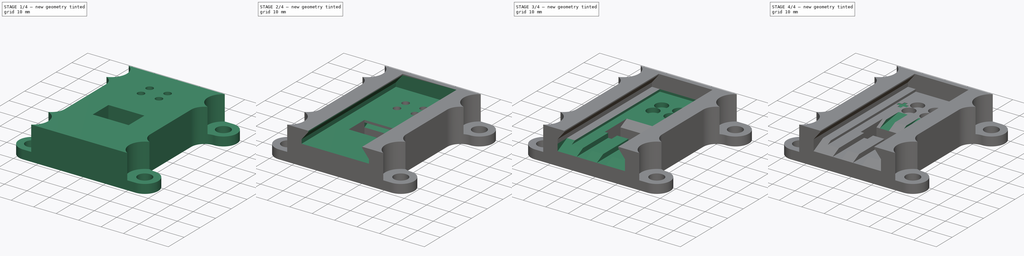
[diagram: build sequence overview — one tinted view per stage of 4, left to right]
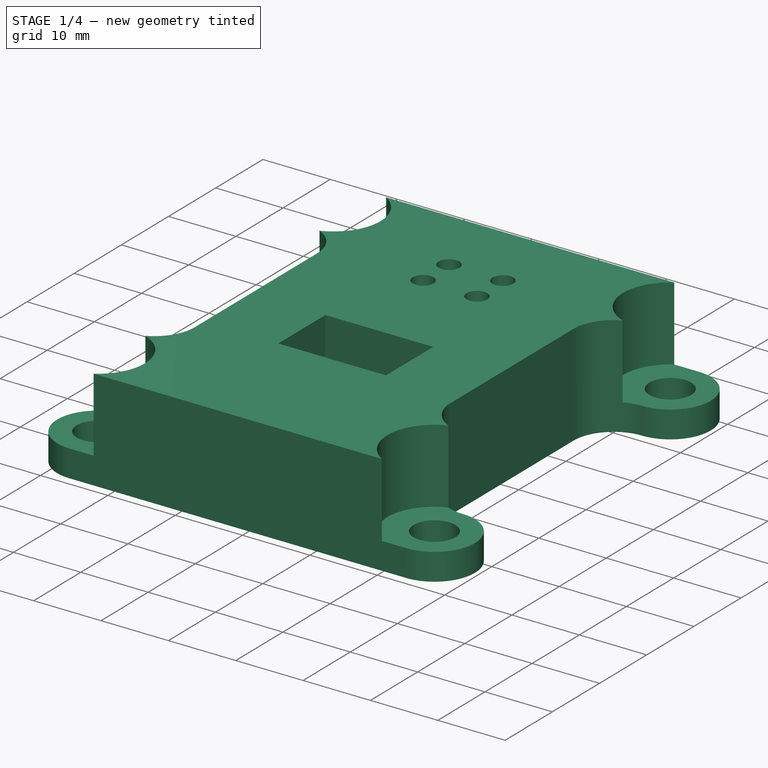
[diagram: stage 1 of 4 — iso view after this stage's code; geometry added in this stage tinted green]
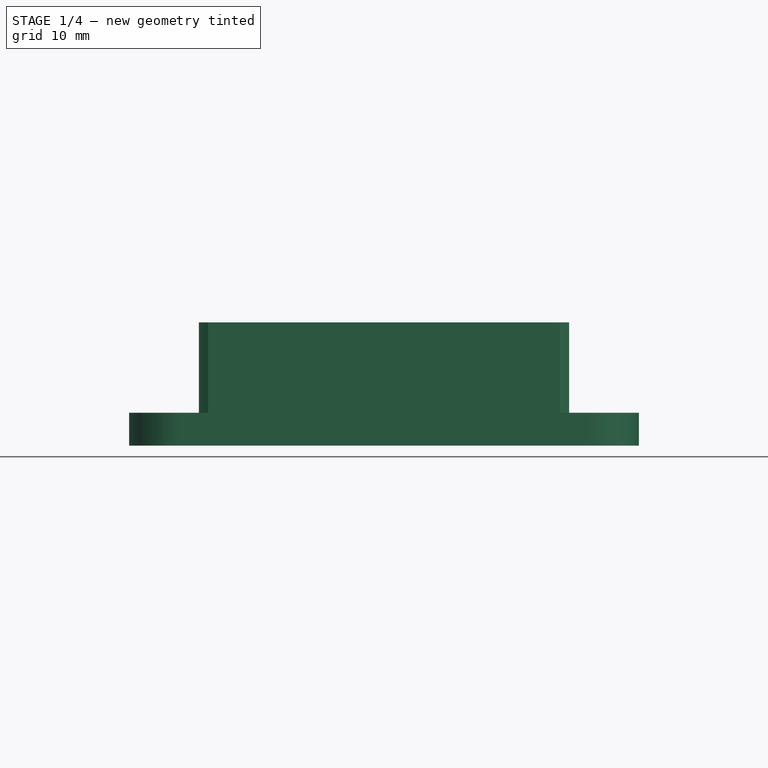
[diagram: stage 1 of 4 — front view after this stage's code; geometry added in this stage tinted green]
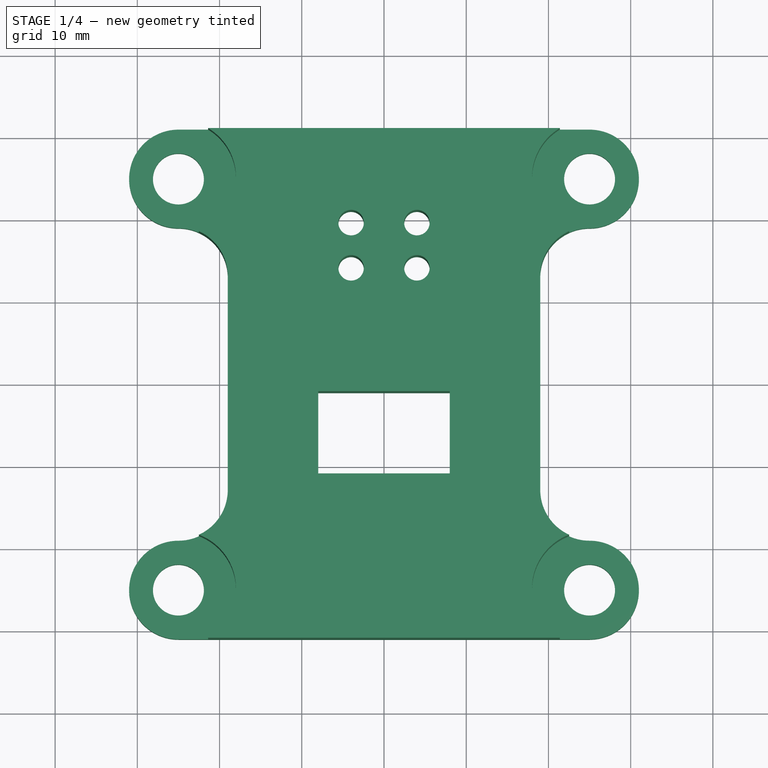
[diagram: stage 1 of 4 — top view after this stage's code; geometry added in this stage tinted green]
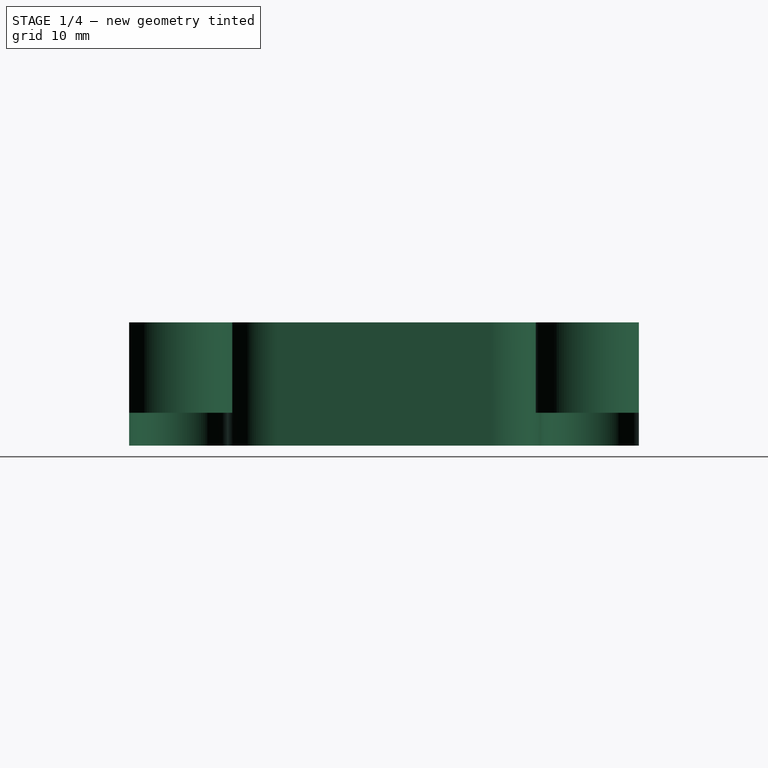
[diagram: stage 1 of 4 — right view after this stage's code; geometry added in this stage tinted green]
FCSTD DOCUMENT  (FreeCAD 0.20R)
Label: mandeye_holder
License: All rights reserved
LicenseURL: http://en.wikipedia.org/wiki/All_rights_reserved
objects: Sketcher::SketchObject×12, PartDesign::Pocket×11, PartDesign::Pad×1, Part::Feature×1, PartDesign::Body×1
note: 38 computed .brp shape members not serialized (recipe doc carries the construction recipe); baked Part::Feature solids carry a one-line shape summary decoded from their .brp

FEATURE [Sketcher::SketchObject] Sketch
  FullyConstrained = true
  MapMode = 5
  Support = -> [XY_Plane]
  sketch-geometry (12):
    g0: ArcOfCircle CenterX=-25 CenterY=25 CenterZ=0 NormalX=0 NormalY=0 NormalZ=1 AngleXU=0 Radius=6 StartAngle=1.5708 EndAngle=4.71239
    g1: ArcOfCircle CenterX=-25 CenterY=-25 CenterZ=0 NormalX=0 NormalY=0 NormalZ=1 AngleXU=0 Radius=6 StartAngle=1.5708 EndAngle=4.71239
    g2: ArcOfCircle CenterX=25 CenterY=-25 CenterZ=0 NormalX=0 NormalY=0 NormalZ=1 AngleXU=0 Radius=6 StartAngle=4.71239 EndAngle=7.85398
    g3: ArcOfCircle CenterX=25 CenterY=25 CenterZ=0 NormalX=0 NormalY=0 NormalZ=1 AngleXU=0 Radius=6 StartAngle=4.71239 EndAngle=7.85398
    g4: ArcOfCircle CenterX=-25 CenterY=13 CenterZ=0 NormalX=0 NormalY=0 NormalZ=1 AngleXU=0 Radius=6 StartAngle=1e-16 EndAngle=1.5708
    g5: ArcOfCircle CenterX=-25 CenterY=-13 CenterZ=0 NormalX=0 NormalY=0 NormalZ=1 AngleXU=0 Radius=6 StartAngle=4.71239 EndAngle=6.28319
    g6: ArcOfCircle CenterX=25 CenterY=-13 CenterZ=0 NormalX=0 NormalY=0 NormalZ=1 AngleXU=0 Radius=6 StartAngle=3.14159 EndAngle=4.71239
    g7: ArcOfCircle CenterX=25 CenterY=13 CenterZ=0 NormalX=0 NormalY=0 NormalZ=1 AngleXU=0 Radius=6 StartAngle=1.57079 EndAngle=3.14159
    g8: LineSegment StartX=-25 StartY=31 StartZ=0 EndX=25 EndY=31 EndZ=0
    g9: LineSegment StartX=-25 StartY=-31 StartZ=0 EndX=25 EndY=-31 EndZ=0
    g10: LineSegment StartX=-19 StartY=-13 StartZ=0 EndX=-19 EndY=13 EndZ=0
    g11: LineSegment StartX=19 StartY=-13 StartZ=0 EndX=19 EndY=13 EndZ=0
  constraints (29):
    c: Coincident(g6,g2)
    c: Coincident(g7,g3)
    c: Coincident(g11,g6)
    c: Vertical(g11)
    c: Symmetric(g2,g1,g-2)
    c: Symmetric(g0,g3,g-2)
    c: Symmetric(g0,g1,g-1)
    c: Equal(g0,g3)
    c: Equal(g3,g7)
    c: Equal(g7,g6)
    c: Equal(g6,g2)
    c: Equal(g0,g4)
    c: Equal(g4,g5)
    c: Tangent(g8,g0) = 1.5708
    c: Tangent(g4,g0) = 1.5708
    c: Tangent(g10,g4) = -1.5708
    c: Tangent(g10,g5) = -1.5708
    c: Tangent(g5,g1) = 1.5708
    c: Tangent(g9,g1) = -1.5708
    c: Symmetric(g5,g4,g-1)
    c: Symmetric(g6,g7,g-1)
    c: Symmetric(g4,g7,g-2)
    c: DistanceY(g2,g3) = 62
    c: Radius(g0) = 6
    c: DistanceX(g0,g3) = 50
    c: Tangent(g8,g3) = 1.5708
    c: Tangent(g11,g7) = 1.5708
    c: Tangent(g9,g2) = -1.5708
    c: DistanceX(g5,g6) = 38
FEATURE [PartDesign::Pad] Pad
  Direction = (0,0,1)
  Length = 15
  Length2 = 10
  Profile = -> Sketch
  ReferenceAxis = -> Sketch [N_Axis]
  Type = 0
FEATURE [Sketcher::SketchObject] Sketch001
  FullyConstrained = true
  MapMode = 5
  Placement = pos=(0,0,15) rot=(0,0,1;0rad)
  Support = -> [Pad]
  sketch-geometry (12):
    g0: Circle CenterX=-25 CenterY=25 CenterZ=0 NormalX=0 NormalY=0 NormalZ=1 AngleXU=0 Radius=3.1
    g1: Circle CenterX=-25 CenterY=-25 CenterZ=0 NormalX=0 NormalY=0 NormalZ=1 AngleXU=0 Radius=3.1
    g2: Circle CenterX=25 CenterY=-25 CenterZ=0 NormalX=0 NormalY=0 NormalZ=1 AngleXU=0 Radius=3.1
    g3: Circle CenterX=25 CenterY=25 CenterZ=0 NormalX=0 NormalY=0 NormalZ=1 AngleXU=0 Radius=3.1
    g4: LineSegment StartX=-8 StartY=-1 StartZ=0 EndX=8 EndY=-1 EndZ=0
    g5: LineSegment StartX=8 StartY=-1 StartZ=0 EndX=8 EndY=-11 EndZ=0
    g6: LineSegment StartX=8 StartY=-11 StartZ=0 EndX=-8 EndY=-11 EndZ=0
    g7: LineSegment StartX=-8 StartY=-11 StartZ=0 EndX=-8 EndY=-1 EndZ=0
    g8: Circle CenterX=-4 CenterY=19.5 CenterZ=0 NormalX=0 NormalY=0 NormalZ=1 AngleXU=0 Radius=1.55
    g9: Circle CenterX=-4 CenterY=14 CenterZ=0 NormalX=0 NormalY=0 NormalZ=1 AngleXU=0 Radius=1.55
    g10: Circle CenterX=4 CenterY=19.5 CenterZ=0 NormalX=0 NormalY=0 NormalZ=1 AngleXU=0 Radius=1.55
    g11: Circle CenterX=4 CenterY=14 CenterZ=0 NormalX=0 NormalY=0 NormalZ=1 AngleXU=0 Radius=1.55
  constraints (30):
    c: Symmetric(g0,g1,g-1)
    c: Symmetric(g3,g2,g-1)
    c: Symmetric(g3,g0,g-2)
    c: Equal(g0,g3)
    c: Equal(g3,g2)
    c: Equal(g0,g1)
    c: Diameter(g0) = 6.2
    c: DistanceY(g1,g0) = 50
    c: DistanceX(g0,g3) = 50
    c: Coincident(g4,g5)
    c: Coincident(g5,g6)
    c: Coincident(g6,g7)
    c: Coincident(g7,g4)
    c: Horizontal(g6)
    c: Vertical(g5)
    c: Vertical(g7)
    c: Symmetric(g4,g4,g-2)
    c: DistanceX(g4,g4) = 16
    c: DistanceY(g-1,g5) = -11
    c: DistanceY(g5,g4) = 10
    c: Symmetric(g8,g10,g-2)
    c: Symmetric(g9,g11,g-2)
    c: DistanceX(g8,g9) = 0
    c: Equal(g8,g10)
    c: Equal(g8,g9)
    c: Equal(g10,g11)
    c: Diameter(g10) = 3.1
    c: DistanceY(g9,g8) = 5.5
    c: DistanceY(g-1,g9) = 14
    c: DistanceX(g9,g11) = 8
FEATURE [PartDesign::Pocket] Pocket
  BaseFeature = -> Pad
  Direction = (0,0,-1)
  Length = 5
  Length2 = 5
  Profile = -> Sketch001
  ReferenceAxis = -> Sketch001 [N_Axis]
  Type = 1
FEATURE [Sketcher::SketchObject] Sketch002
  FullyConstrained = true
  MapMode = 5
  Placement = pos=(0,0,15) rot=(0,0,1;0rad)
  Support = -> [Pocket]
  sketch-geometry (4):
    g0: Circle CenterX=-25 CenterY=25 CenterZ=0 NormalX=0 NormalY=0 NormalZ=1 AngleXU=0 Radius=7
    g1: Circle CenterX=-25 CenterY=-25 CenterZ=0 NormalX=0 NormalY=0 NormalZ=1 AngleXU=0 Radius=7
    g2: Circle CenterX=25 CenterY=25 CenterZ=0 NormalX=0 NormalY=0 NormalZ=1 AngleXU=0 Radius=7
    g3: Circle CenterX=25 CenterY=-25 CenterZ=0 NormalX=0 NormalY=0 NormalZ=1 AngleXU=0 Radius=7
  constraints (9):
    c: Symmetric(g1,g0,g-1)
    c: Symmetric(g3,g2,g-1)
    c: Symmetric(g2,g0,g-2)
    c: Equal(g0,g2)
    c: Equal(g0,g1)
    c: Equal(g2,g3)
    c: Diameter(g0) = 14
    c: DistanceY(g1,g0) = 50
    c: DistanceX(g0,g2) = 50
FEATURE [PartDesign::Pocket] Pocket001
  BaseFeature = -> Pocket
  Direction = (0,0,-1)
  Length = 11
  Length2 = 5
  Profile = -> Sketch002
  ReferenceAxis = -> Sketch002 [N_Axis]
  Type = 0
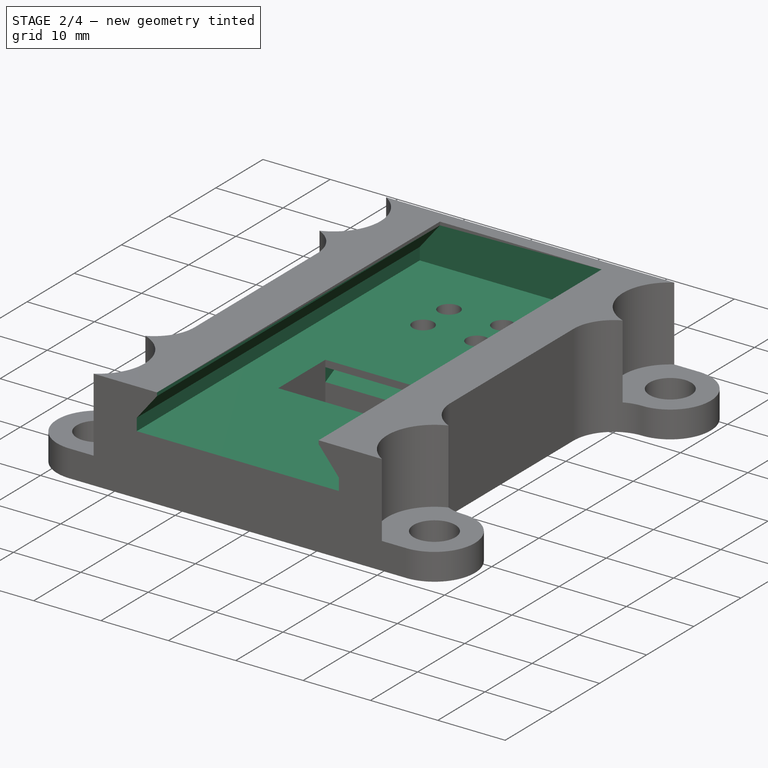
[diagram: stage 2 of 4 — iso view after this stage's code; geometry added in this stage tinted green]
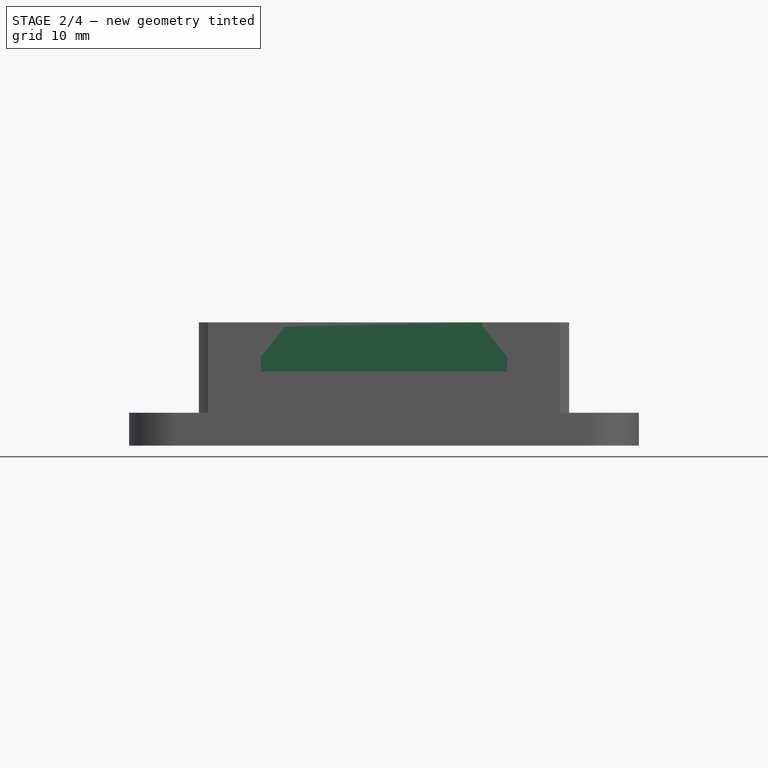
[diagram: stage 2 of 4 — front view after this stage's code; geometry added in this stage tinted green]
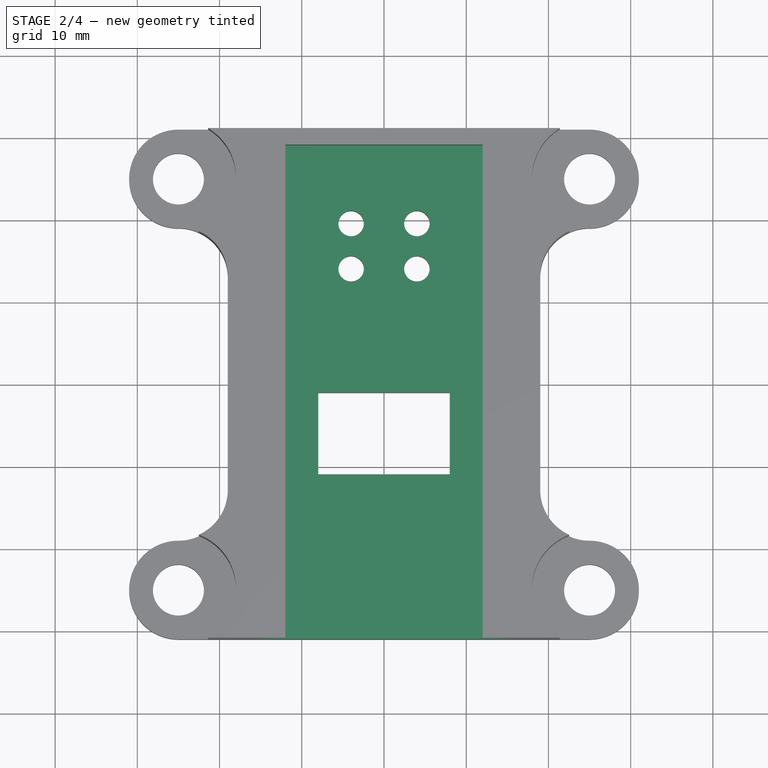
[diagram: stage 2 of 4 — top view after this stage's code; geometry added in this stage tinted green]
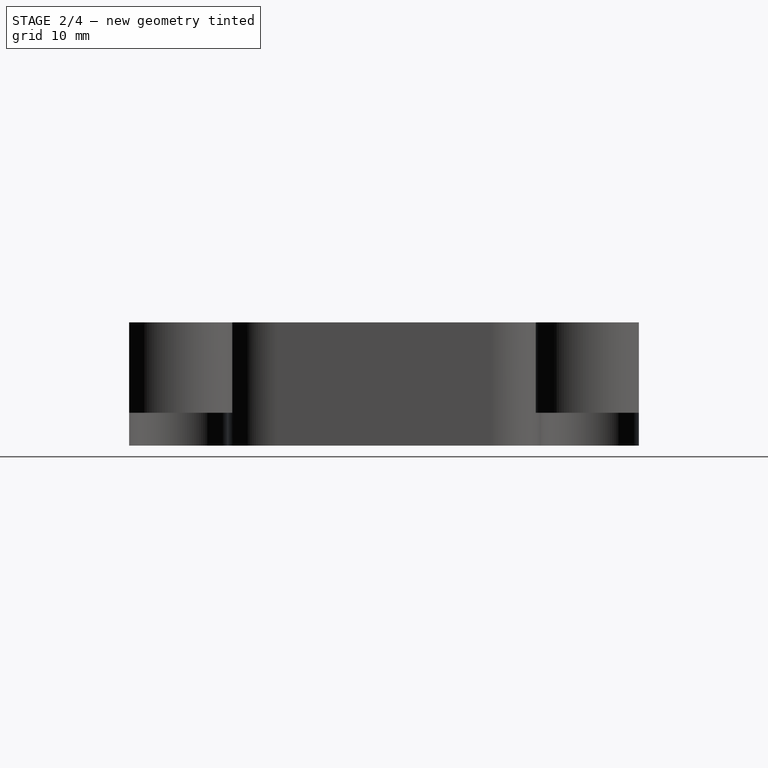
[diagram: stage 2 of 4 — right view after this stage's code; geometry added in this stage tinted green]
FEATURE [Sketcher::SketchObject] Sketch003
  FullyConstrained = true
  MapMode = 5
  Placement = pos=(-2.2e-15,-31,0) rot=(1,0,0;1.5708rad)
  Support = -> [Pocket001]
  sketch-geometry (8):
    g0: LineSegment StartX=-12 StartY=14.5 StartZ=0 EndX=-15 EndY=10.8 EndZ=0
    g1: LineSegment StartX=-15 StartY=10.8 StartZ=0 EndX=-15 EndY=9 EndZ=0
    g2: LineSegment StartX=-15 StartY=9 StartZ=0 EndX=15 EndY=9 EndZ=0
    g3: LineSegment StartX=15 StartY=9 StartZ=0 EndX=15 EndY=10.8 EndZ=0
    g4: LineSegment StartX=15 StartY=10.8 StartZ=0 EndX=12 EndY=14.5 EndZ=0
    g5: LineSegment StartX=-12 StartY=14.5 StartZ=0 EndX=-12 EndY=15.5 EndZ=0
    g6: LineSegment StartX=-12 StartY=15.5 StartZ=0 EndX=12 EndY=15.5 EndZ=0
    g7: LineSegment StartX=12 StartY=15.5 StartZ=0 EndX=12 EndY=14.5 EndZ=0
  constraints (20):
    c: Coincident(g0,g1)
    c: Vertical(g1)
    c: Coincident(g1,g2)
    c: Coincident(g2,g3)
    c: Coincident(g3,g4)
    c: Symmetric(g1,g2,g-2)
    c: Symmetric(g0,g3,g-2)
    c: Symmetric(g0,g4,g-2)
    c: DistanceX(g1,g2) = 30
    c: DistanceY(g1,g0) = 1.8
    c: DistanceY(g0,g0) = 3.7
    c: DistanceY(g-1,g1) = 9
    c: DistanceX(g0,g4) = 24
    c: Coincident(g0,g5)
    c: Vertical(g5)
    c: Coincident(g5,g6)
    c: Coincident(g6,g7)
    c: Coincident(g7,g4)
    c: Symmetric(g5,g6,g-2)
    c: DistanceY(g5,g5) = 1
FEATURE [PartDesign::Pocket] Pocket002
  BaseFeature = -> Pocket001
  Direction = (1e-16,1,-2e-16)
  Length = 60
  Length2 = 5
  Profile = -> Sketch003
  ReferenceAxis = -> Sketch003 [N_Axis]
  Type = 0
FEATURE [Part::Feature] Part__Feature  label="Part 1"
  Placement = pos=(0,29,9) rot=(0,0,1;0rad)
  shape: bbox 80 x 120 x 17.75 mm, 149 faces (baked)
FEATURE [Sketcher::SketchObject] Sketch005
  FullyConstrained = true
  MapMode = 5
  Placement = pos=(0,0,0) rot=(1,0,0;3.14159rad)
  sketch-geometry (8):
    g0: ArcOfCircle CenterX=-4 CenterY=-14 CenterZ=0 NormalX=0 NormalY=0 NormalZ=1 AngleXU=0 Radius=3 StartAngle=1e-16 EndAngle=3.14159
    g1: ArcOfCircle CenterX=4 CenterY=-14 CenterZ=0 NormalX=0 NormalY=0 NormalZ=1 AngleXU=0 Radius=3 StartAngle=0 EndAngle=3.14159
    g2: LineSegment StartX=-7 StartY=-14 StartZ=0 EndX=-7 EndY=-31 EndZ=0
    g3: LineSegment StartX=-7 StartY=-31 StartZ=0 EndX=-1 EndY=-31 EndZ=0
    g4: LineSegment StartX=-1 StartY=-31 StartZ=0 EndX=-1 EndY=-14 EndZ=0
    g5: LineSegment StartX=1 StartY=-14 StartZ=0 EndX=1 EndY=-31 EndZ=0
    g6: LineSegment StartX=1 StartY=-31 StartZ=0 EndX=7 EndY=-31 EndZ=0
    g7: LineSegment StartX=7 StartY=-31 StartZ=0 EndX=7 EndY=-14 EndZ=0
  constraints (20):
    c: Tangent(g0,g2) = -1.5708
    c: Coincident(g2,g3)
    c: Horizontal(g3)
    c: Coincident(g3,g4)
    c: Tangent(g1,g5) = -1.5708
    c: Coincident(g5,g6)
    c: Coincident(g6,g7)
    c: Vertical(g2)
    c: Vertical(g4)
    c: Vertical(g7)
    c: Horizontal(g6)
    c: Symmetric(g0,g1,g-2)
    c: Symmetric(g0,g1,g-2)
    c: Tangent(g4,g0) = -1.5708
    c: Tangent(g7,g1) = -1.5708
    c: Diameter(g0) = 6
    c: DistanceX(g0,g1) = 8
    c: DistanceY(g0,g-1) = 14
    c: DistanceY(g3,g-1) = 31
    c: Symmetric(g3,g5,g-2)
FEATURE [PartDesign::Pocket] Pocket004
  BaseFeature = -> Pocket002
  Direction = (0,0,1)
  Length = 4
  Length2 = 5
  Profile = -> Sketch005
  ReferenceAxis = -> Sketch005 [N_Axis]
  Type = 0
FEATURE [Sketcher::SketchObject] Sketch007
  FullyConstrained = true
  MapMode = 5
  Placement = pos=(-8,0,0) rot=(0.57735,0.57735,0.57735;2.0944rad)
  sketch-geometry (3):
    g0: LineSegment StartX=-1 StartY=8 StartZ=0 EndX=-1 EndY=6 EndZ=0
    g1: LineSegment StartX=-1 StartY=6 StartZ=0 EndX=3 EndY=8 EndZ=0
    g2: LineSegment StartX=3 StartY=8 StartZ=0 EndX=-1 EndY=8 EndZ=0
  constraints (9):
    c: Coincident(g0,g1)
    c: Coincident(g1,g2)
    c: Coincident(g2,g0)
    c: Horizontal(g2)
    c: Vertical(g0)
    c: DistanceY(g0,g0) = 2
    c: DistanceX(g0,g1) = 4
    c: DistanceX(g0,g-1) = 1
    c: DistanceY(g-1,g0) = 8
FEATURE [PartDesign::Pocket] Pocket006
  BaseFeature = -> Pocket004
  Direction = (-1,0,0)
  Length = 16
  Length2 = 5
  Profile = -> Sketch007
  ReferenceAxis = -> Sketch007 [N_Axis]
  Reversed = true
  Type = 0
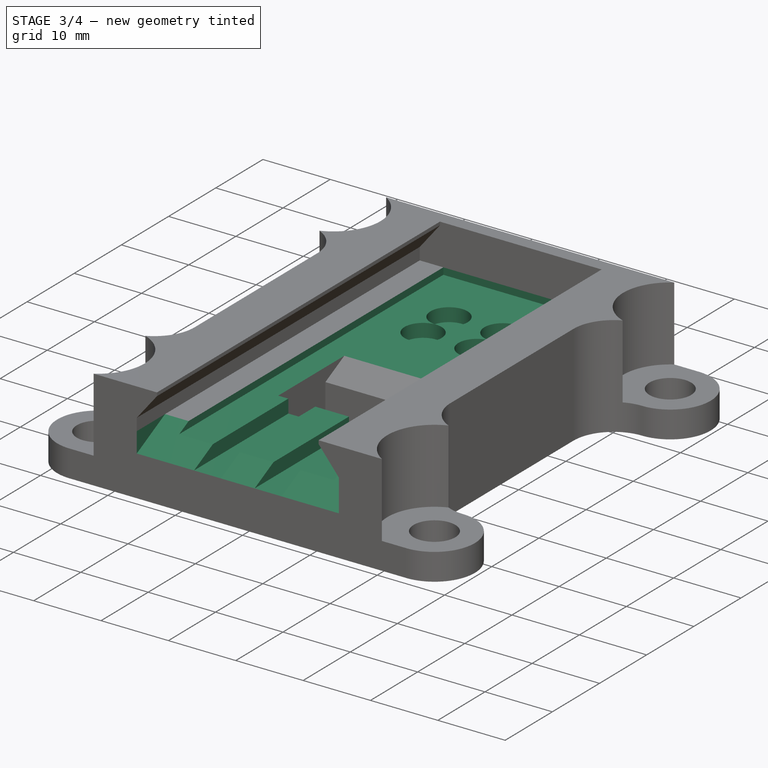
[diagram: stage 3 of 4 — iso view after this stage's code; geometry added in this stage tinted green]
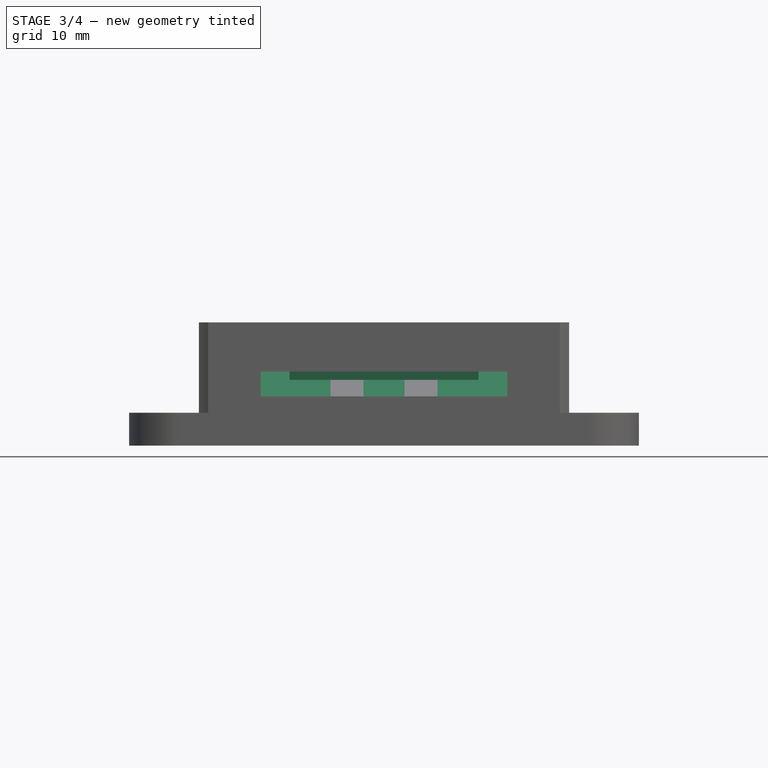
[diagram: stage 3 of 4 — front view after this stage's code; geometry added in this stage tinted green]
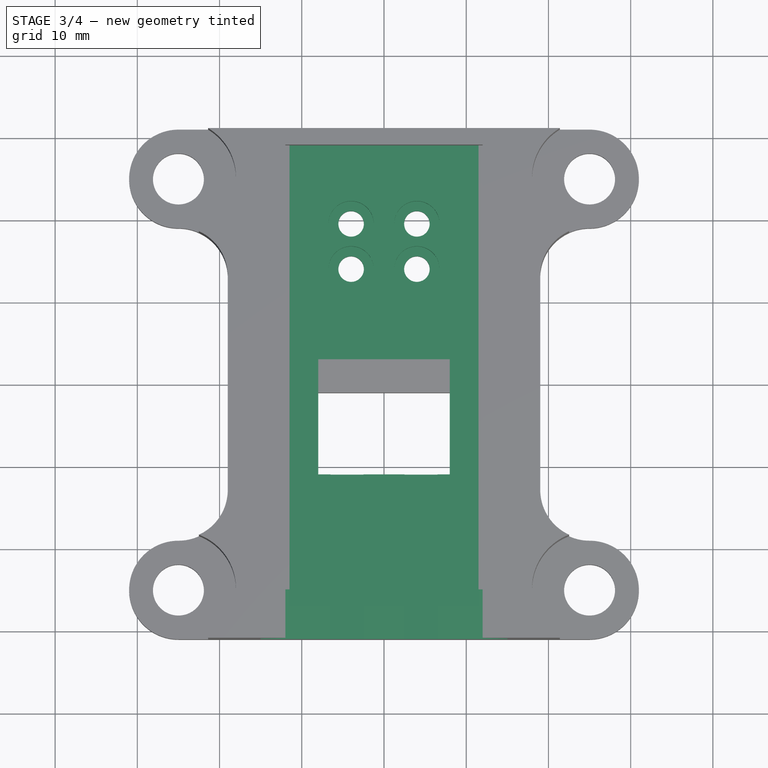
[diagram: stage 3 of 4 — top view after this stage's code; geometry added in this stage tinted green]
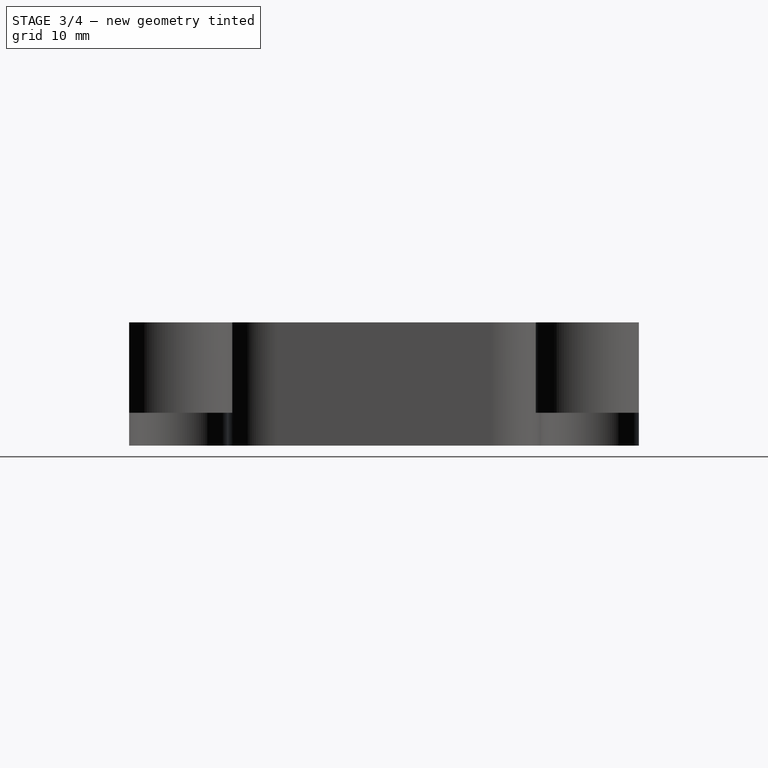
[diagram: stage 3 of 4 — right view after this stage's code; geometry added in this stage tinted green]
FEATURE [Sketcher::SketchObject] Sketch008
  FullyConstrained = true
  MapMode = 5
  Placement = pos=(0,0,0) rot=(0.57735,0.57735,0.57735;2.0944rad)
  Support = -> [YZ_Plane]
  sketch-geometry (3):
    g0: LineSegment StartX=-31 StartY=9 StartZ=0 EndX=-31 EndY=6 EndZ=0
    g1: LineSegment StartX=-31 StartY=6 StartZ=0 EndX=-25 EndY=9 EndZ=0
    g2: LineSegment StartX=-25 StartY=9 StartZ=0 EndX=-31 EndY=9 EndZ=0
  constraints (9):
    c: Coincident(g0,g1)
    c: Coincident(g1,g2)
    c: Coincident(g2,g0)
    c: Horizontal(g2)
    c: Vertical(g0)
    c: DistanceY(g0,g0) = 3
    c: DistanceY(g-1,g0) = 9
    c: DistanceX(g0,g1) = 6
    c: DistanceX(g0,g-1) = 31
FEATURE [Sketcher::SketchObject] Sketch009
  FullyConstrained = true
  MapMode = 5
  Placement = pos=(0,2e-15,9) rot=(0,0,1;0rad)
  Support = -> [Pocket006]
  sketch-geometry (4):
    g0: LineSegment StartX=-11.5 StartY=29 StartZ=0 EndX=11.5 EndY=29 EndZ=0
    g1: LineSegment StartX=11.5 StartY=29 StartZ=0 EndX=11.5 EndY=-31 EndZ=0
    g2: LineSegment StartX=11.5 StartY=-31 StartZ=0 EndX=-11.5 EndY=-31 EndZ=0
    g3: LineSegment StartX=-11.5 StartY=-31 StartZ=0 EndX=-11.5 EndY=29 EndZ=0
  constraints (11):
    c: Coincident(g0,g1)
    c: Coincident(g1,g2)
    c: Coincident(g2,g3)
    c: Coincident(g3,g0)
    c: Horizontal(g0)
    c: Vertical(g1)
    c: Vertical(g3)
    c: Symmetric(g2,g1,g-2)
    c: DistanceY(g1,g-1) = 31
    c: DistanceY(g-1,g0) = 29
    c: DistanceX(g0,g0) = 23
FEATURE [PartDesign::Pocket] Pocket008
  BaseFeature = -> Pocket006
  Direction = (0,-2e-16,-1)
  Length = 1
  Length2 = 5
  Profile = -> Sketch009
  ReferenceAxis = -> Sketch009 [N_Axis]
  Type = 0
FEATURE [PartDesign::Pocket] Pocket009
  BaseFeature = -> Pocket008
  Direction = (-1,2e-16,-3e-16)
  Length = 30
  Length2 = 5
  Midplane = true
  Profile = -> Sketch008
  ReferenceAxis = -> Sketch008 [N_Axis]
  Type = 0
FEATURE [Sketcher::SketchObject] Sketch004
  FullyConstrained = true
  MapMode = 5
  Placement = pos=(0,2e-15,9) rot=(0,0,1;0rad)
  Support = -> [Pocket009]
  sketch-geometry (12):
    g0: Circle CenterX=-4 CenterY=14 CenterZ=0 NormalX=0 NormalY=0 NormalZ=1 AngleXU=0 Radius=2.75
    g1: Circle CenterX=4 CenterY=14 CenterZ=0 NormalX=0 NormalY=0 NormalZ=1 AngleXU=0 Radius=2.75
    g2: Circle CenterX=4 CenterY=19.5 CenterZ=0 NormalX=0 NormalY=0 NormalZ=1 AngleXU=0 Radius=2.75
    g3: Circle CenterX=-4 CenterY=19.5 CenterZ=0 NormalX=0 NormalY=0 NormalZ=1 AngleXU=0 Radius=2.75
    g4: LineSegment StartX=-6.5 StartY=-10 StartZ=0 EndX=-2.5 EndY=-10 EndZ=0
    g5: LineSegment StartX=-2.5 StartY=-10 StartZ=0 EndX=-2.5 EndY=-31 EndZ=0
    g6: LineSegment StartX=-2.5 StartY=-31 StartZ=0 EndX=-6.5 EndY=-31 EndZ=0
    g7: LineSegment StartX=-6.5 StartY=-31 StartZ=0 EndX=-6.5 EndY=-10 EndZ=0
    g8: LineSegment StartX=2.5 StartY=-10 StartZ=0 EndX=6.5 EndY=-10 EndZ=0
    g9: LineSegment StartX=6.5 StartY=-10 StartZ=0 EndX=6.5 EndY=-31 EndZ=0
    g10: LineSegment StartX=6.5 StartY=-31 StartZ=0 EndX=2.5 EndY=-31 EndZ=0
    g11: LineSegment StartX=2.5 StartY=-31 StartZ=0 EndX=2.5 EndY=-10 EndZ=0
  constraints (31):
    c: Symmetric(g3,g2,g-2)
    c: Symmetric(g0,g1,g-2)
    c: DistanceX(g0,g3) = 0
    c: DistanceX(g0,g1) = 8
    c: Equal(g3,g2)
    c: Equal(g3,g0)
    c: Equal(g2,g1)
    c: Diameter(g2) = 5.5
    c: DistanceY(g0,g3) = 5.5
    c: DistanceY(g-1,g0) = 14
    c: Coincident(g4,g5)
    c: Coincident(g5,g6)
    c: Coincident(g6,g7)
    c: Coincident(g7,g4)
    c: Horizontal(g4)
    c: Horizontal(g6)
    c: Vertical(g5)
    c: Vertical(g7)
    c: Coincident(g8,g9)
    c: Coincident(g9,g10)
    c: Coincident(g10,g11)
    c: Coincident(g11,g8)
    c: Horizontal(g8)
    c: Vertical(g9)
    c: Symmetric(g5,g10,g-2)
    c: Symmetric(g4,g8,g-2)
    c: Symmetric(g6,g9,g-2)
    c: DistanceX(g5,g10) = 5
    c: DistanceX(g6,g5) = 4
    c: DistanceY(g10,g-1) = 31
    c: DistanceY(g8,g-1) = 10
FEATURE [PartDesign::Pocket] Pocket010
  BaseFeature = -> Pocket009
  Direction = (0,-2e-16,-1)
  Length = 3
  Length2 = 5
  Profile = -> Sketch004
  ReferenceAxis = -> Sketch004 [N_Axis]
  Type = 0
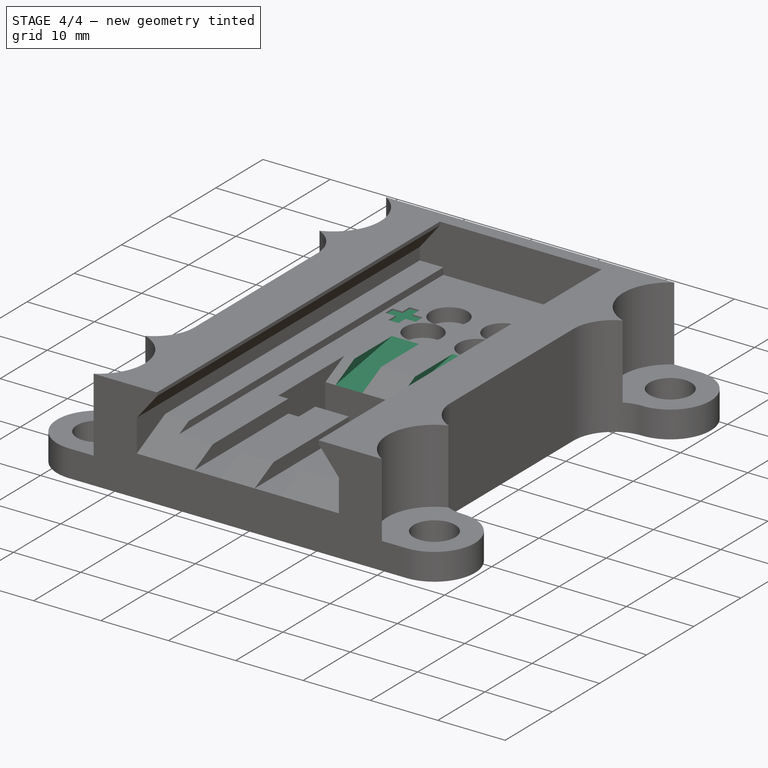
[diagram: stage 4 of 4 — iso view after this stage's code; geometry added in this stage tinted green]
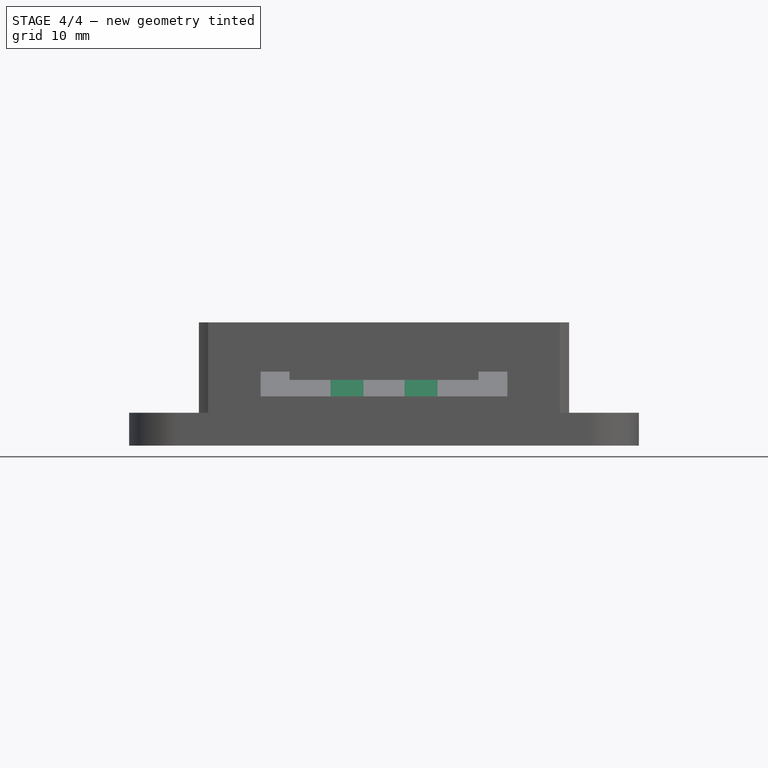
[diagram: stage 4 of 4 — front view after this stage's code; geometry added in this stage tinted green]
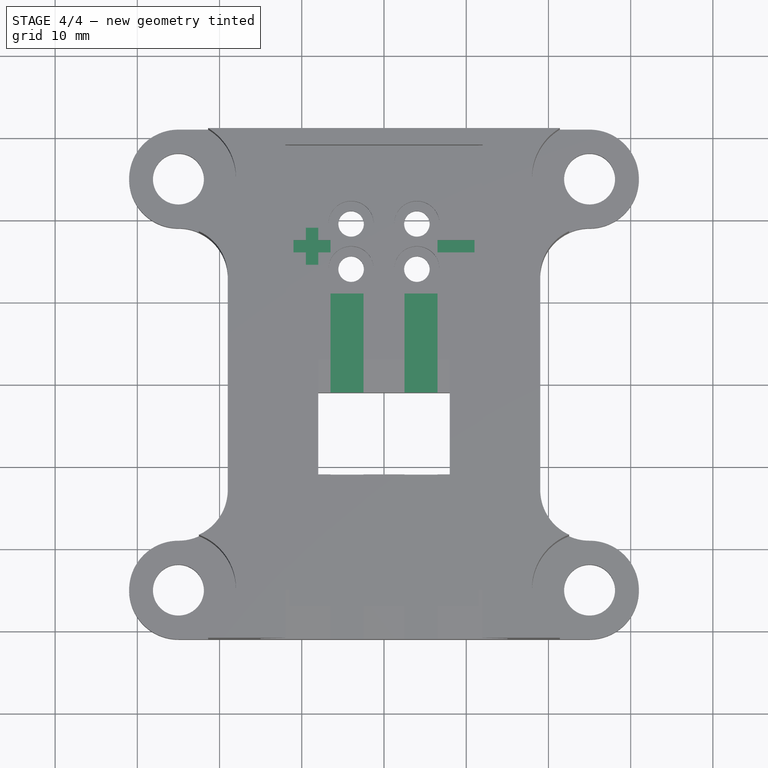
[diagram: stage 4 of 4 — top view after this stage's code; geometry added in this stage tinted green]
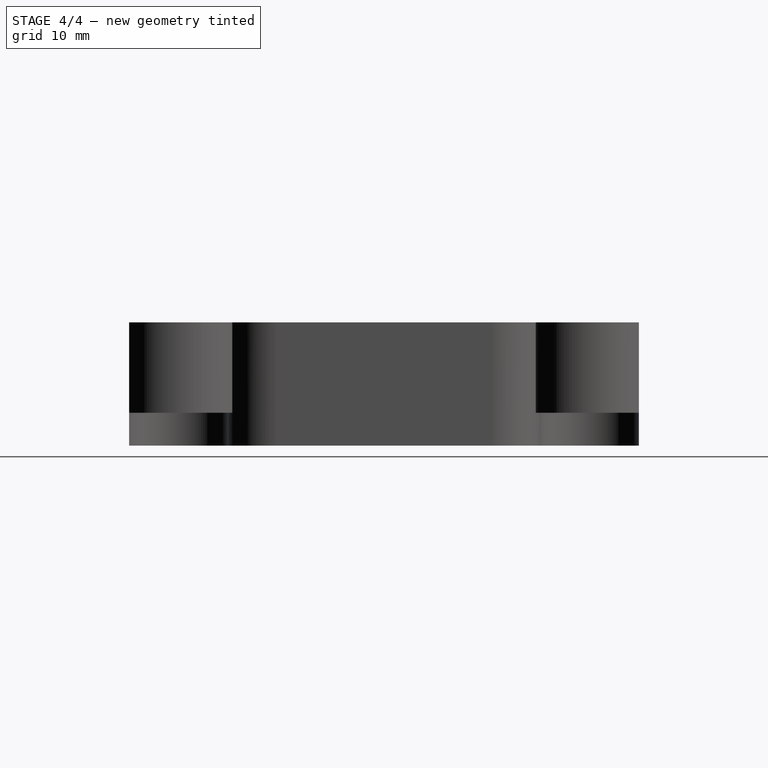
[diagram: stage 4 of 4 — right view after this stage's code; geometry added in this stage tinted green]
FEATURE [Sketcher::SketchObject] Sketch006
  FullyConstrained = true
  MapMode = 5
  Placement = pos=(0,1.9e-15,8) rot=(0,0,1;0rad)
  Support = -> [Pocket010]
  sketch-geometry (20):
    g0: LineSegment StartX=6.5 StartY=17.5 StartZ=0 EndX=11 EndY=17.5 EndZ=0
    g1: LineSegment StartX=11 StartY=17.5 StartZ=0 EndX=11 EndY=16 EndZ=0
    g2: LineSegment StartX=11 StartY=16 StartZ=0 EndX=6.5 EndY=16 EndZ=0
    g3: LineSegment StartX=6.5 StartY=16 StartZ=0 EndX=6.5 EndY=17.5 EndZ=0
    g4: LineSegment StartX=-9.5 StartY=19 StartZ=0 EndX=-8 EndY=19 EndZ=0
    g5: LineSegment StartX=-8 StartY=14.5 StartZ=0 EndX=-9.5 EndY=14.5 EndZ=0
    g6: LineSegment StartX=-6.5 StartY=17.5 StartZ=0 EndX=-6.5 EndY=16 EndZ=0
    g7: LineSegment StartX=-11 StartY=16 StartZ=0 EndX=-11 EndY=17.5 EndZ=0
    g8: GeomPoint X=-9.5 Y=17.5 Z=0
    g9: GeomPoint X=-9.5 Y=16 Z=0
    g10: GeomPoint X=-8 Y=16 Z=0
    g11: GeomPoint X=-8 Y=17.5 Z=0
    g12: LineSegment StartX=-8 StartY=19 StartZ=0 EndX=-8 EndY=17.5 EndZ=0
    g13: LineSegment StartX=-6.5 StartY=17.5 StartZ=0 EndX=-8 EndY=17.5 EndZ=0
    g14: LineSegment StartX=-6.5 StartY=16 StartZ=0 EndX=-8 EndY=16 EndZ=0
    g15: LineSegment StartX=-8 StartY=14.5 StartZ=0 EndX=-8 EndY=16 EndZ=0
    g16: LineSegment StartX=-9.5 StartY=14.5 StartZ=0 EndX=-9.5 EndY=16 EndZ=0
    g17: LineSegment StartX=-11 StartY=16 StartZ=0 EndX=-9.5 EndY=16 EndZ=0
    g18: LineSegment StartX=-11 StartY=17.5 StartZ=0 EndX=-9.5 EndY=17.5 EndZ=0
    g19: LineSegment StartX=-9.5 StartY=19 StartZ=0 EndX=-9.5 EndY=17.5 EndZ=0
  constraints (48):
    c: Coincident(g0,g1)
    c: Coincident(g1,g2)
    c: Coincident(g2,g3)
    c: Coincident(g3,g0)
    c: Horizontal(g4)
    c: Horizontal(g5)
    c: Vertical(g6)
    c: Vertical(g7)
    c: Coincident(g12,g4)
    c: Coincident(g12,g11)
    c: Vertical(g12)
    c: Coincident(g13,g6)
    c: Coincident(g13,g12)
    c: Horizontal(g13)
    c: Coincident(g14,g6)
    c: Coincident(g14,g10)
    c: Horizontal(g14)
    c: Coincident(g15,g5)
    c: Coincident(g15,g14)
    c: Vertical(g15)
    c: Coincident(g16,g9)
    c: Coincident(g17,g7)
    c: Coincident(g17,g16)
    c: Horizontal(g17)
    c: Coincident(g18,g7)
    c: Coincident(g18,g8)
    c: Horizontal(g18)
    c: Coincident(g19,g4)
    c: Coincident(g19,g18)
    c: Vertical(g19)
    c: DistanceX(g7,g18) = 1.5
    c: DistanceX(g4,g4) = 1.5
    c: DistanceX(g12,g6) = 1.5
    c: DistanceX(g18,g16) = 0
    c: DistanceX(g14,g12) = 0
    c: Coincident(g16,g5)
    c: Vertical(g16)
    c: DistanceY(g18,g4) = 1.5
    c: DistanceY(g18,g12) = 0
    c: DistanceY(g16,g14) = 0
    c: DistanceY(g7,g7) = 1.5
    c: DistanceY(g5,g16) = 1.5
    c: Symmetric(g7,g1,g-2)
    c: Symmetric(g6,g2,g-2)
    c: Symmetric(g6,g0,g-2)
    c: Symmetric(g7,g0,g-2)
    c: DistanceX(g6,g2) = 13
    c: DistanceY(g-1,g6) = 16
FEATURE [Sketcher::SketchObject] Sketch010
  FullyConstrained = true
  MapMode = 5
  Placement = pos=(-6.5,0,0) rot=(0.57735,0.57735,0.57735;2.0944rad)
  sketch-geometry (3):
    g0: LineSegment StartX=-1 StartY=8 StartZ=0 EndX=-1 EndY=6 EndZ=0
    g1: LineSegment StartX=-1 StartY=6 StartZ=0 EndX=11 EndY=8 EndZ=0
    g2: LineSegment StartX=11 StartY=8 StartZ=0 EndX=-1 EndY=8 EndZ=0
  constraints (9):
    c: Vertical(g0)
    c: Coincident(g0,g1)
    c: Coincident(g1,g2)
    c: Coincident(g2,g0)
    c: Horizontal(g2)
    c: DistanceY(g0,g0) = 2
    c: DistanceY(g-1,g0) = 8
    c: DistanceX(g0,g-1) = 1
    c: DistanceX(g0,g1) = 12
FEATURE [PartDesign::Pocket] Pocket011
  BaseFeature = -> Pocket010
  Direction = (0,-2e-16,-1)
  Length = 0.2
  Length2 = 5
  Profile = -> Sketch006
  ReferenceAxis = -> Sketch006 [N_Axis]
  Type = 0
FEATURE [PartDesign::Pocket] Pocket012
  BaseFeature = -> Pocket011
  Direction = (-1,0,0)
  Length = 4
  Length2 = 5
  Profile = -> Sketch010
  ReferenceAxis = -> Sketch010 [N_Axis]
  Reversed = true
  Type = 0
FEATURE [Sketcher::SketchObject] Sketch011
  FullyConstrained = true
  MapMode = 5
  Placement = pos=(2.5,0,0) rot=(0.57735,0.57735,0.57735;2.0944rad)
  Support = -> [Pocket012]
  sketch-geometry (3):
    g0: LineSegment StartX=-1 StartY=8 StartZ=0 EndX=-1 EndY=6 EndZ=0
    g1: LineSegment StartX=-1 StartY=6 StartZ=0 EndX=11 EndY=8 EndZ=0
    g2: LineSegment StartX=11 StartY=8 StartZ=0 EndX=-1 EndY=8 EndZ=0
  constraints (9):
    c: Vertical(g0)
    c: Coincident(g0,g1)
    c: Coincident(g1,g2)
    c: Coincident(g2,g0)
    c: Horizontal(g2)
    c: DistanceY(g0,g0) = 2
    c: DistanceY(g-1,g0) = 8
    c: DistanceX(g0,g-1) = 1
    c: DistanceX(g0,g1) = 12
FEATURE [PartDesign::Pocket] Pocket013
  BaseFeature = -> Pocket012
  Direction = (-1,0,0)
  Length = 4
  Length2 = 5
  Profile = -> Sketch011
  ReferenceAxis = -> Sketch011 [N_Axis]
  Reversed = true
  Type = 0
FEATURE [PartDesign::Body] Body  label="mandeye_holder"
  Group = -> [Sketch,Pad,Sketch001,Pocket,Sketch002,Pocket001,Sketch003,Pocket002,Sketch004,Sketch005,Pocket004,Sketch006,Sketch007,Pocket006,Sketch008,Sketch009,Pocket008,Pocket009,Pocket010,Sketch010,Pocket011,Pocket012,Sketch011,Pocket013]
  Origin = -> Origin
  Tip = -> Pocket013
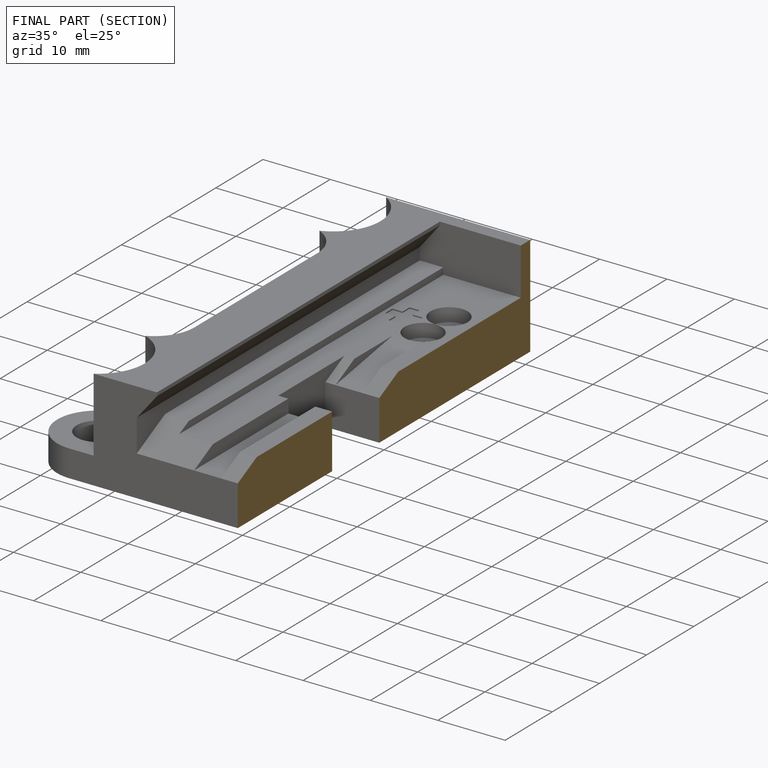
[diagram: finished part — half-section view (interior)]
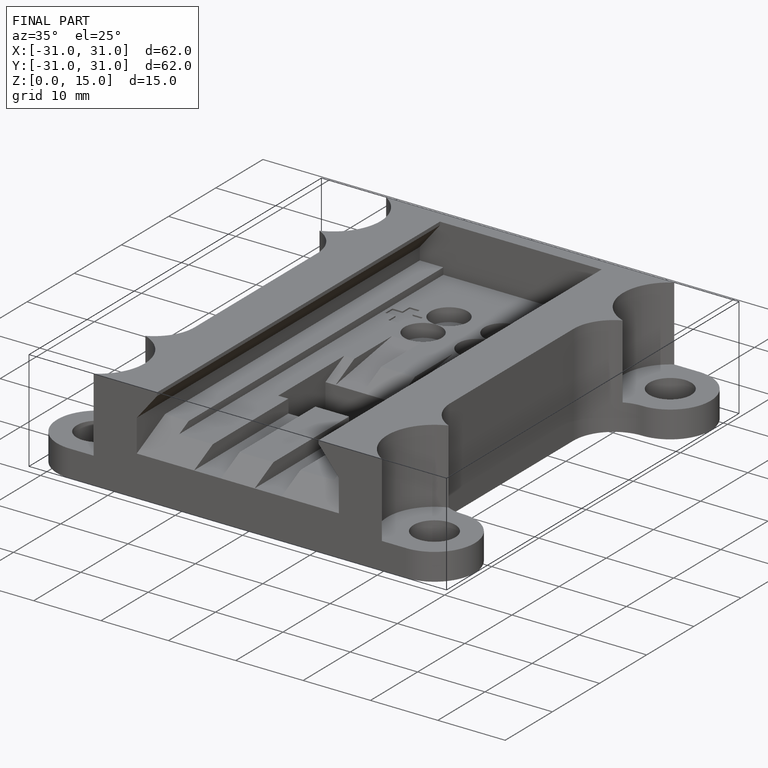
[diagram: finished part — iso view with bounding-box wireframe]
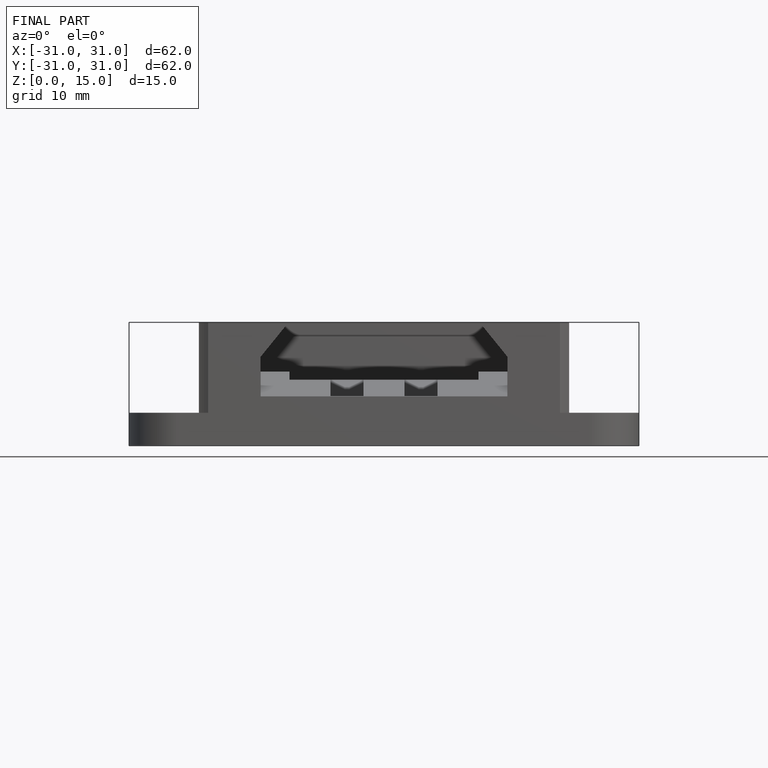
[diagram: finished part — front view with bounding-box wireframe]
